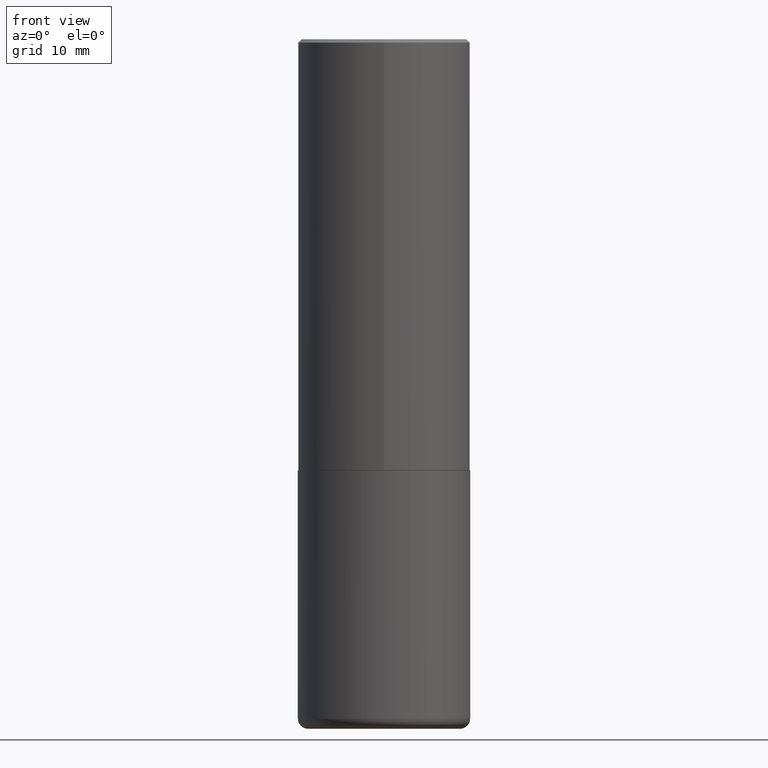
[diagram: clean part render]
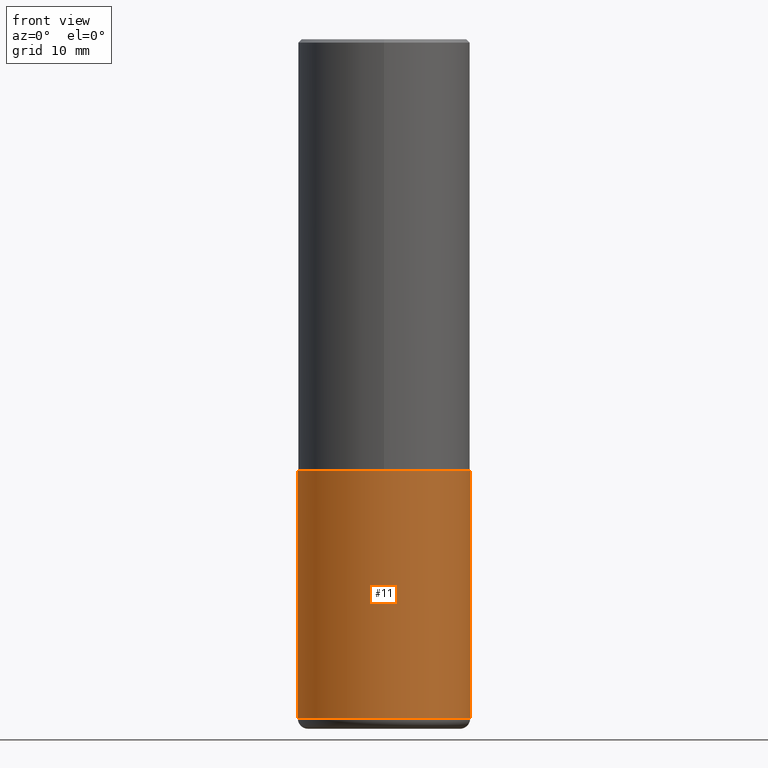
[diagram: same view with one face highlighted and labeled with its STEP entity id]
A machine part, front view. The second image highlights one B-rep face of the part: STEP entity #11.
In plain terms, the highlighted cylindrical surface (partial cylindrical patch) has radius 12.7 mm, axis along (-0, 0, 1).
Its self-contained STEP definition (entity closure, byte-faithful):
#6 = EDGE_CURVE ( 'NONE', #294, #332, #207, .T. ) ;
#10 = CARTESIAN_POINT ( 'NONE',  ( 0.000000000000000000, 0.000000000000000000, 0.000000000000000000 ) ) ;
#11 = ADVANCED_FACE ( 'NONE', ( #204 ), #181, .T. ) ;
#19 = EDGE_CURVE ( 'NONE', #360, #102, #182, .T. ) ;
#35 = ORIENTED_EDGE ( 'NONE', *, *, #19, .F. ) ;
#46 = DIRECTION ( 'NONE',  ( 1.000000000000000000, -6.982962677686266711E-15, 4.876176775795935793E-29 ) ) ;
#72 = CARTESIAN_POINT ( 'NONE',  ( 0.5000000000000000000, -1.222018468595099830E-14, -2.500000000000000000 ) ) ;
#81 = CARTESIAN_POINT ( 'NONE',  ( 0.5000000000000000000, -3.491481338843133355E-15, 2.438088387897967896E-29 ) ) ;
#102 = VERTEX_POINT ( 'NONE', #72 ) ;
#108 = DIRECTION ( 'NONE',  ( 1.000000000000000000, -6.982962677686269077E-15, 0.000000000000000000 ) ) ;
#111 = CARTESIAN_POINT ( 'NONE',  ( 6.113672015462842613E-29, -8.728703347107864943E-15, -2.500000000000000000 ) ) ;
#113 = CARTESIAN_POINT ( 'NONE',  ( 0.5000000000000001110, -1.724791781388512737E-14, -3.939999999999999947 ) ) ;
#131 = AXIS2_PLACEMENT_3D ( 'NONE', #10, #139, #46 ) ;
#135 = EDGE_CURVE ( 'NONE', #294, #360, #208, .T. ) ;
#139 = DIRECTION ( 'NONE',  ( -2.445468806185136597E-29, 3.491481338843145583E-15, 1.000000000000000000 ) ) ;
#142 = CARTESIAN_POINT ( 'NONE',  ( 9.635147096369438236E-29, -1.375643647504199401E-14, -3.939999999999999947 ) ) ;
#170 = DIRECTION ( 'NONE',  ( 1.000000000000000000, -6.982962677686267499E-15, 0.000000000000000000 ) ) ;
#175 = CARTESIAN_POINT ( 'NONE',  ( -0.5000000000000001110, -1.020372279624149466E-14, -3.939999999999999947 ) ) ;
#181 = CYLINDRICAL_SURFACE ( 'NONE', #131, 0.5000000000000000000 ) ;
#182 = CIRCLE ( 'NONE', #374, 0.5000000000000000000 ) ;
#197 = ORIENTED_EDGE ( 'NONE', *, *, #6, .T. ) ;
#199 = AXIS2_PLACEMENT_3D ( 'NONE', #142, #213, #170 ) ;
#204 = FACE_OUTER_BOUND ( 'NONE', #230, .T. ) ;
#207 = CIRCLE ( 'NONE', #199, 0.4999999999999999445 ) ;
#208 = LINE ( 'NONE', #401, #274 ) ;
#213 = DIRECTION ( 'NONE',  ( -2.445468806185136597E-29, 3.491481338843145583E-15, 1.000000000000000000 ) ) ;
#230 = EDGE_LOOP ( 'NONE', ( #362, #197, #386, #35 ) ) ;
#254 = EDGE_CURVE ( 'NONE', #332, #102, #379, .T. ) ;
#274 = VECTOR ( 'NONE', #339, 39.37007874015748143 ) ;
#276 = DIRECTION ( 'NONE',  ( -2.445468806185136877E-29, 3.491481338843145188E-15, 1.000000000000000000 ) ) ;
#294 = VERTEX_POINT ( 'NONE', #175 ) ;
#332 = VERTEX_POINT ( 'NONE', #113 ) ;
#335 = CARTESIAN_POINT ( 'NONE',  ( -0.5000000000000000000, -7.689856232274428549E-15, -2.500000000000000000 ) ) ;
#339 = DIRECTION ( 'NONE',  ( -2.445468806185136877E-29, 3.491481338843145188E-15, 1.000000000000000000 ) ) ;
#360 = VERTEX_POINT ( 'NONE', #335 ) ;
#362 = ORIENTED_EDGE ( 'NONE', *, *, #135, .F. ) ;
#374 = AXIS2_PLACEMENT_3D ( 'NONE', #111, #406, #108 ) ;
#379 = LINE ( 'NONE', #81, #384 ) ;
#384 = VECTOR ( 'NONE', #276, 39.37007874015748143 ) ;
#386 = ORIENTED_EDGE ( 'NONE', *, *, #254, .T. ) ;
#401 = CARTESIAN_POINT ( 'NONE',  ( -0.5000000000000000000, 3.552713678800500929E-15, -2.459467545127452891E-29 ) ) ;
#406 = DIRECTION ( 'NONE',  ( -2.445468806185136597E-29, 3.491481338843145583E-15, 1.000000000000000000 ) ) ;